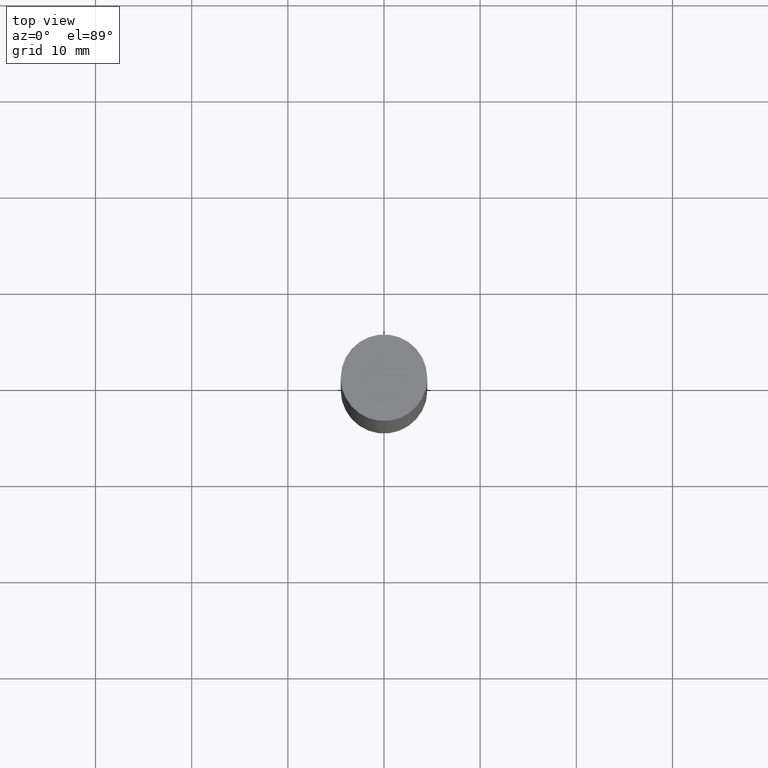
[diagram: clean part render]
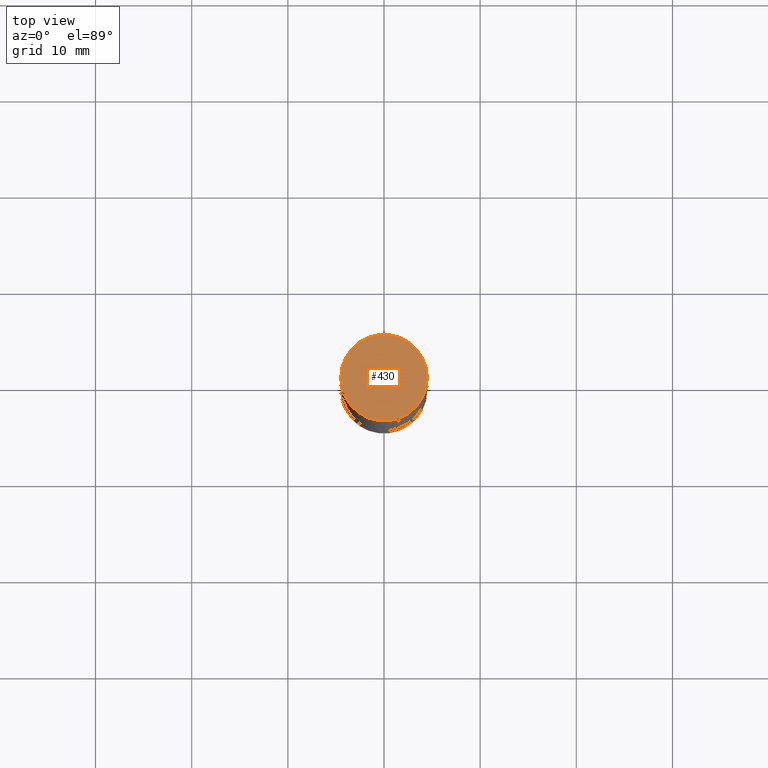
[diagram: same view with one face highlighted and labeled with its STEP entity id]
A machine part, top view. The second image highlights one B-rep face of the part: STEP entity #430.
In plain terms, the highlighted planar face has unit normal (0, 0, 1).
Its self-contained STEP definition (entity closure, byte-faithful):
#30 = CARTESIAN_POINT ( 'NONE',  ( 7.220980290903470182E-29, 2.080354946989631982E-18, 5.463695987328526437E-16 ) ) ;
#40 = DIRECTION ( 'NONE',  ( 2.445468806185136597E-29, 3.492890411551752677E-15, 1.000000000000000000 ) ) ;
#49 = DIRECTION ( 'NONE',  ( 1.000000000000000000, -6.982962677686266711E-15, 0.000000000000000000 ) ) ;
#67 = DIRECTION ( 'NONE',  ( 1.000000000000000000, -6.982962677686266711E-15, 0.000000000000000000 ) ) ;
#81 = PLANE ( 'NONE',  #124 ) ;
#99 = CIRCLE ( 'NONE', #528, 0.1771500000000000019 ) ;
#124 = AXIS2_PLACEMENT_3D ( 'NONE', #619, #154, #513 ) ;
#154 = DIRECTION ( 'NONE',  ( 2.438088387897959769E-29, 3.492890411551753071E-15, 1.000000000000000000 ) ) ;
#199 = CARTESIAN_POINT ( 'NONE',  ( -0.1771500000000000019, 2.547769778285537851E-16, 5.463695987328559963E-16 ) ) ;
#218 = EDGE_LOOP ( 'NONE', ( #600, #296 ) ) ;
#296 = ORIENTED_EDGE ( 'NONE', *, *, #661, .T. ) ;
#304 = FACE_OUTER_BOUND ( 'NONE', #218, .T. ) ;
#326 = VERTEX_POINT ( 'NONE', #651 ) ;
#342 = DIRECTION ( 'NONE',  ( 2.445468806185136597E-29, 3.492890411551752677E-15, 1.000000000000000000 ) ) ;
#415 = VERTEX_POINT ( 'NONE', #199 ) ;
#430 = ADVANCED_FACE ( 'NONE', ( #304 ), #81, .T. ) ;
#449 = AXIS2_PLACEMENT_3D ( 'NONE', #30, #342, #67 ) ;
#459 = EDGE_CURVE ( 'NONE', #326, #415, #99, .T. ) ;
#513 = DIRECTION ( 'NONE',  ( -1.000000000000000000, 6.982962677686265922E-15, -9.839502134516470631E-33 ) ) ;
#528 = AXIS2_PLACEMENT_3D ( 'NONE', #565, #40, #49 ) ;
#565 = CARTESIAN_POINT ( 'NONE',  ( 7.220980290903470182E-29, 2.080354946989631982E-18, 5.463695987328526437E-16 ) ) ;
#600 = ORIENTED_EDGE ( 'NONE', *, *, #459, .T. ) ;
#619 = CARTESIAN_POINT ( 'NONE',  ( 1.237031838352194377E-15, 0.1771500000000000019, 0.000000000000000000 ) ) ;
#651 = CARTESIAN_POINT ( 'NONE',  ( 0.1771500000000000019, -1.234951483405132701E-15, 5.463695987328526437E-16 ) ) ;
#661 = EDGE_CURVE ( 'NONE', #415, #326, #663, .T. ) ;
#663 = CIRCLE ( 'NONE', #449, 0.1771500000000000019 ) ;